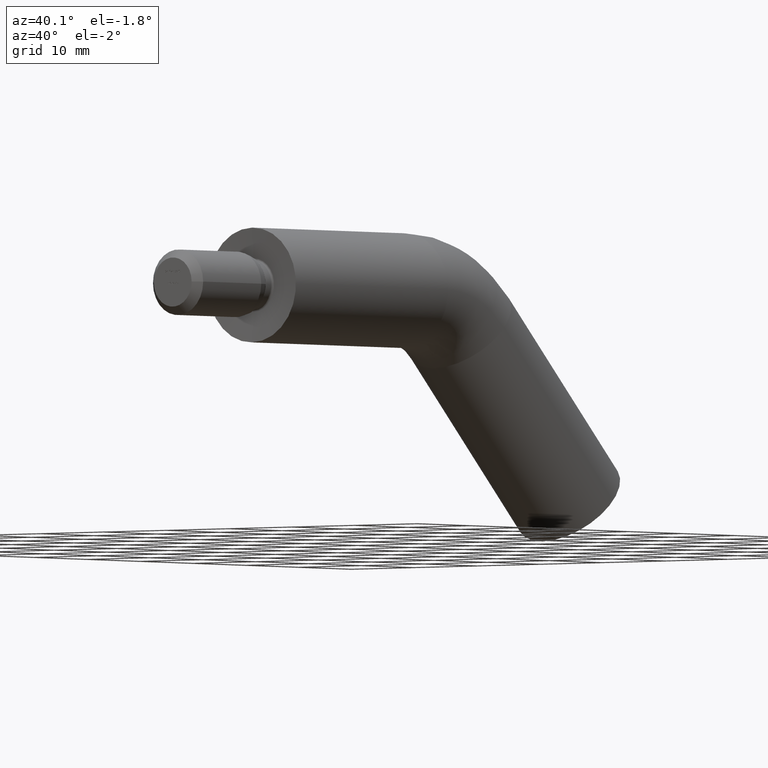
[diagram: clean part render]
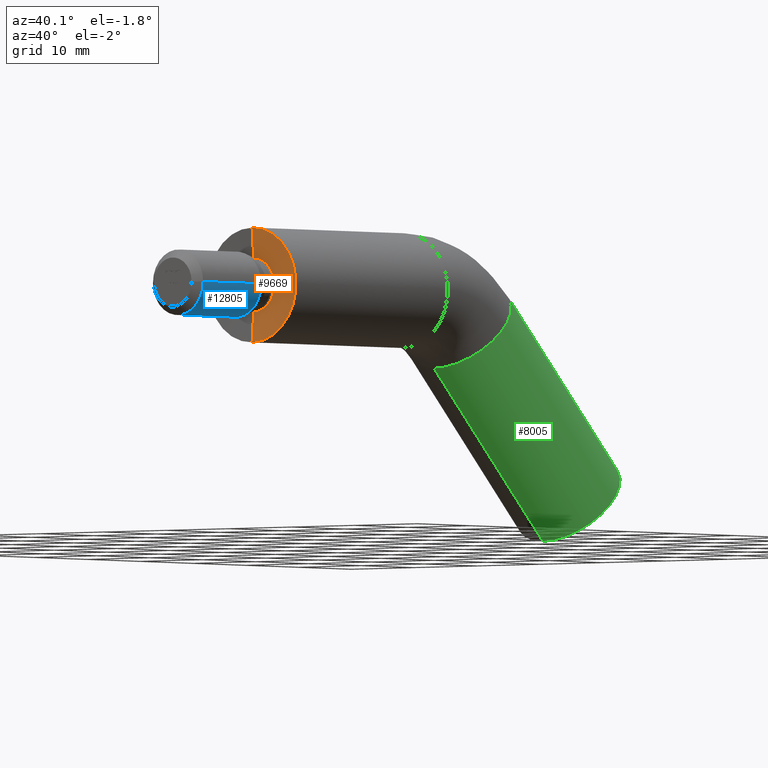
[diagram: same view with three faces highlighted in distinct colors, each labeled with its STEP entity id]
A machine part, auxiliary view with three faces highlighted in distinct colors.
Their STEP definitions:

[orange] entity #9669 — the highlighted conical surface has half-angle 85 deg.
#1080 = AXIS2_PLACEMENT_3D ( 'NONE', #8326, #7229, #8192 ) ;
#1416 = CARTESIAN_POINT ( 'NONE',  ( 0.0000000000000000000, 0.3261762033592852100, 0.0000000000000000000 ) ) ;
#1590 = AXIS2_PLACEMENT_3D ( 'NONE', #1416, #7637, #7560 ) ;
#1678 = AXIS2_PLACEMENT_3D ( 'NONE', #11620, #9657, #11754 ) ;
#1750 = VERTEX_POINT ( 'NONE', #13063 ) ;
#1849 = ORIENTED_EDGE ( 'NONE', *, *, #9052, .T. ) ;
#2219 = DIRECTION ( 'NONE',  ( 0.0000000000000000000, -0.08715574274765128200, -0.9961946980917461000 ) ) ;
#2286 = CIRCLE ( 'NONE', #1678, 7.000000000000000000 ) ;
#3094 = CARTESIAN_POINT ( 'NONE',  ( 0.0000000000000000000, 0.0000000000000000000, -7.000000000000000000 ) ) ;
#4009 = ORIENTED_EDGE ( 'NONE', *, *, #6234, .T. ) ;
#4931 = ORIENTED_EDGE ( 'NONE', *, *, #5767, .F. ) ;
#5767 = EDGE_CURVE ( 'NONE', #1750, #13227, #8176, .T. ) ;
#5977 = FACE_OUTER_BOUND ( 'NONE', #6456, .T. ) ;
#6234 = EDGE_CURVE ( 'NONE', #10663, #13227, #2286, .T. ) ;
#6302 = CONICAL_SURFACE ( 'NONE', #1080, 7.000000000000000000, 1.483529864195187100 ) ;
#6456 = EDGE_LOOP ( 'NONE', ( #4931, #1849, #11007, #4009 ) ) ;
#6797 = CARTESIAN_POINT ( 'NONE',  ( 0.0000000000000000000, 0.0000000000000000000, -7.000000000000000000 ) ) ;
#6909 = EDGE_CURVE ( 'NONE', #9186, #10663, #9742, .T. ) ;
#7229 = DIRECTION ( 'NONE',  ( -0.0000000000000000000, -1.000000000000000000, -0.0000000000000000000 ) ) ;
#7459 = CIRCLE ( 'NONE', #1590, 3.271788935686912800 ) ;
#7560 = DIRECTION ( 'NONE',  ( 0.0000000000000000000, 0.0000000000000000000, -1.000000000000000000 ) ) ;
#7637 = DIRECTION ( 'NONE',  ( 0.0000000000000000000, 1.000000000000000000, 0.0000000000000000000 ) ) ;
#8176 = LINE ( 'NONE', #11235, #8662 ) ;
#8192 = DIRECTION ( 'NONE',  ( 0.0000000000000000000, 0.0000000000000000000, -1.000000000000000000 ) ) ;
#8326 = CARTESIAN_POINT ( 'NONE',  ( 0.0000000000000000000, 0.0000000000000000000, 0.0000000000000000000 ) ) ;
#8662 = VECTOR ( 'NONE', #11094, 1000.000000000000000 ) ;
#9052 = EDGE_CURVE ( 'NONE', #1750, #9186, #7459, .T. ) ;
#9186 = VERTEX_POINT ( 'NONE', #13058 ) ;
#9657 = DIRECTION ( 'NONE',  ( -0.0000000000000000000, -1.000000000000000000, -0.0000000000000000000 ) ) ;
#9669 = ADVANCED_FACE ( 'NONE', ( #5977 ), #6302, .F. ) ;
#9742 = LINE ( 'NONE', #3094, #12006 ) ;
#10663 = VERTEX_POINT ( 'NONE', #6797 ) ;
#11007 = ORIENTED_EDGE ( 'NONE', *, *, #6909, .T. ) ;
#11094 = DIRECTION ( 'NONE',  ( 1.219986648345620700E-016, -0.08715574274765128200, 0.9961946980917461000 ) ) ;
#11235 = CARTESIAN_POINT ( 'NONE',  ( 8.572527594031473200E-016, 0.0000000000000000000, 7.000000000000000000 ) ) ;
#11453 = CARTESIAN_POINT ( 'NONE',  ( 8.572527594031473200E-016, 0.0000000000000000000, 7.000000000000000000 ) ) ;
#11620 = CARTESIAN_POINT ( 'NONE',  ( 0.0000000000000000000, 0.0000000000000000000, 0.0000000000000000000 ) ) ;
#11754 = DIRECTION ( 'NONE',  ( 0.0000000000000000000, 0.0000000000000000000, -1.000000000000000000 ) ) ;
#12006 = VECTOR ( 'NONE', #2219, 1000.000000000000000 ) ;
#13058 = CARTESIAN_POINT ( 'NONE',  ( 0.0000000000000000000, 0.3261762033592852100, -3.271788935686912800 ) ) ;
#13063 = CARTESIAN_POINT ( 'NONE',  ( 6.289656720803087700E-016, 0.3261762033592852100, 3.271788935686912800 ) ) ;
#13227 = VERTEX_POINT ( 'NONE', #11453 ) ;

[blue] entity #12805 — the highlighted cylindrical surface (edge-blend (fillet) strip) has radius 4 mm, axis along (-0, 1, -0).
#1 = EDGE_CURVE ( 'NONE', #4466, #9406, #8992, .T. ) ;
#57 = DIRECTION ( 'NONE',  ( -1.000000000000000000, -1.156482317317871700E-016, 0.0000000000000000000 ) ) ;
#782 = VECTOR ( 'NONE', #3477, 1000.000000000000000 ) ;
#1422 = CARTESIAN_POINT ( 'NONE',  ( -4.000000000000001800, -3.000000000000000000, 0.0000000000000000000 ) ) ;
#1990 = CYLINDRICAL_SURFACE ( 'NONE', #8130, 4.000000000000000900 ) ;
#2617 = CARTESIAN_POINT ( 'NONE',  ( -3.999999999999999100, -13.99999999999999300, 0.0000000000000000000 ) ) ;
#2970 = ORIENTED_EDGE ( 'NONE', *, *, #4318, .F. ) ;
#3477 = DIRECTION ( 'NONE',  ( -1.156482317317871500E-016, 1.000000000000000000, -0.0000000000000000000 ) ) ;
#4136 = EDGE_LOOP ( 'NONE', ( #5250, #5137, #12266, #2970 ) ) ;
#4240 = DIRECTION ( 'NONE',  ( -1.156482317317871500E-016, 1.000000000000000000, -0.0000000000000000000 ) ) ;
#4318 = EDGE_CURVE ( 'NONE', #7055, #9406, #8214, .T. ) ;
#4368 = CARTESIAN_POINT ( 'NONE',  ( 4.000000000000000900, 4.625929269271487900E-016, 4.898587196589413800E-016 ) ) ;
#4403 = DIRECTION ( 'NONE',  ( -1.000000000000000000, 0.0000000000000000000, 0.0000000000000000000 ) ) ;
#4447 = DIRECTION ( 'NONE',  ( -1.156482317317871500E-016, 1.000000000000000000, -0.0000000000000000000 ) ) ;
#4466 = VERTEX_POINT ( 'NONE', #2617 ) ;
#5137 = ORIENTED_EDGE ( 'NONE', *, *, #9301, .T. ) ;
#5250 = ORIENTED_EDGE ( 'NONE', *, *, #7761, .F. ) ;
#5378 = CARTESIAN_POINT ( 'NONE',  ( -4.000000000000000900, -4.625929269271487900E-016, 0.0000000000000000000 ) ) ;
#5882 = AXIS2_PLACEMENT_3D ( 'NONE', #12456, #7275, #6176 ) ;
#5981 = CIRCLE ( 'NONE', #12491, 4.000000000000000900 ) ;
#6176 = DIRECTION ( 'NONE',  ( -1.000000000000000000, -1.084202172485503900E-016, 0.0000000000000000000 ) ) ;
#6186 = LINE ( 'NONE', #4368, #782 ) ;
#6356 = CARTESIAN_POINT ( 'NONE',  ( 0.0000000000000000000, 0.0000000000000000000, 0.0000000000000000000 ) ) ;
#6401 = VECTOR ( 'NONE', #4447, 1000.000000000000000 ) ;
#7055 = VERTEX_POINT ( 'NONE', #11184 ) ;
#7275 = DIRECTION ( 'NONE',  ( -1.156482317317871500E-016, 1.000000000000000000, -0.0000000000000000000 ) ) ;
#7761 = EDGE_CURVE ( 'NONE', #10464, #7055, #6186, .T. ) ;
#8130 = AXIS2_PLACEMENT_3D ( 'NONE', #6356, #4240, #57 ) ;
#8214 = CIRCLE ( 'NONE', #5882, 4.000000000000001800 ) ;
#8992 = LINE ( 'NONE', #5378, #6401 ) ;
#9301 = EDGE_CURVE ( 'NONE', #10464, #4466, #5981, .T. ) ;
#9406 = VERTEX_POINT ( 'NONE', #1422 ) ;
#10464 = VERTEX_POINT ( 'NONE', #12499 ) ;
#10594 = FACE_OUTER_BOUND ( 'NONE', #4136, .T. ) ;
#11184 = CARTESIAN_POINT ( 'NONE',  ( 4.000000000000001800, -2.999999999999999100, 4.898587196589413800E-016 ) ) ;
#12266 = ORIENTED_EDGE ( 'NONE', *, *, #1, .T. ) ;
#12456 = CARTESIAN_POINT ( 'NONE',  ( 3.469446951953613700E-016, -2.999999999999999600, 0.0000000000000000000 ) ) ;
#12491 = AXIS2_PLACEMENT_3D ( 'NONE', #12713, #12760, #4403 ) ;
#12499 = CARTESIAN_POINT ( 'NONE',  ( 4.000000000000002700, -13.99999999999999300, 4.898587196589414800E-016 ) ) ;
#12713 = CARTESIAN_POINT ( 'NONE',  ( 1.619075244245019200E-015, -13.99999999999999300, 0.0000000000000000000 ) ) ;
#12760 = DIRECTION ( 'NONE',  ( -1.156482317317871700E-016, 1.000000000000000000, -0.0000000000000000000 ) ) ;
#12805 = ADVANCED_FACE ( 'NONE', ( #10594 ), #1990, .T. ) ;

[green] entity #8005 — the highlighted cylindrical surface (partial cylindrical patch) has radius 7 mm, axis along (0, 0.7071, -0.7071).
#179 = DIRECTION ( 'NONE',  ( 0.0000000000000000000, 0.7071067811865462400, -0.7071067811865489100 ) ) ;
#226 = CARTESIAN_POINT ( 'NONE',  ( 0.0000000000000000000, 60.00000000000000000, -24.99999999999999300 ) ) ;
#890 = CARTESIAN_POINT ( 'NONE',  ( 8.572527594031473200E-016, 55.05025253169416300, -29.94974746830581900 ) ) ;
#1469 = ORIENTED_EDGE ( 'NONE', *, *, #8963, .F. ) ;
#2213 = DIRECTION ( 'NONE',  ( 0.0000000000000000000, 0.7071067811865462400, -0.7071067811865489100 ) ) ;
#2546 = CARTESIAN_POINT ( 'NONE',  ( 0.0000000000000000000, 44.34314575050772300, 0.5563491861040212900 ) ) ;
#3225 = CARTESIAN_POINT ( 'NONE',  ( 0.0000000000000000000, 44.34314575050772300, 0.5563491861040205100 ) ) ;
#3743 = CIRCLE ( 'NONE', #12842, 7.000000000000001800 ) ;
#4184 = LINE ( 'NONE', #3225, #11487 ) ;
#4269 = CARTESIAN_POINT ( 'NONE',  ( 0.0000000000000000000, 39.39339828220188600, -4.393398282201803600 ) ) ;
#4690 = ORIENTED_EDGE ( 'NONE', *, *, #6212, .T. ) ;
#5180 = CYLINDRICAL_SURFACE ( 'NONE', #9283, 7.000000000000000900 ) ;
#5205 = CARTESIAN_POINT ( 'NONE',  ( 8.572527594031473200E-016, 34.44365081389604200, -9.343145750507629200 ) ) ;
#5575 = DIRECTION ( 'NONE',  ( 0.0000000000000000000, 0.7071067811865463500, -0.7071067811865487900 ) ) ;
#5716 = VECTOR ( 'NONE', #179, 999.9999999999998900 ) ;
#5782 = VERTEX_POINT ( 'NONE', #7048 ) ;
#6039 = AXIS2_PLACEMENT_3D ( 'NONE', #10752, #5575, #11858 ) ;
#6094 = ORIENTED_EDGE ( 'NONE', *, *, #12953, .T. ) ;
#6212 = EDGE_CURVE ( 'NONE', #7728, #9263, #11366, .T. ) ;
#6425 = CARTESIAN_POINT ( 'NONE',  ( 8.572527594031473200E-016, 34.44365081389604200, -9.343145750507627400 ) ) ;
#7048 = CARTESIAN_POINT ( 'NONE',  ( 0.0000000000000000000, 64.94974746830584400, -20.05025253169417400 ) ) ;
#7377 = EDGE_CURVE ( 'NONE', #5782, #9263, #3743, .T. ) ;
#7519 = DIRECTION ( 'NONE',  ( 0.0000000000000000000, 0.7071067811865462400, -0.7071067811865487900 ) ) ;
#7588 = DIRECTION ( 'NONE',  ( 0.0000000000000000000, 0.7071067811865463500, -0.7071067811865487900 ) ) ;
#7728 = VERTEX_POINT ( 'NONE', #5205 ) ;
#7786 = VERTEX_POINT ( 'NONE', #2546 ) ;
#8005 = ADVANCED_FACE ( 'NONE', ( #9569 ), #5180, .T. ) ;
#8922 = EDGE_LOOP ( 'NONE', ( #6094, #4690, #11638, #1469 ) ) ;
#8963 = EDGE_CURVE ( 'NONE', #7786, #5782, #4184, .T. ) ;
#9263 = VERTEX_POINT ( 'NONE', #890 ) ;
#9283 = AXIS2_PLACEMENT_3D ( 'NONE', #4269, #7519, #12530 ) ;
#9569 = FACE_OUTER_BOUND ( 'NONE', #8922, .T. ) ;
#9640 = CIRCLE ( 'NONE', #6039, 7.000000000000000900 ) ;
#10752 = CARTESIAN_POINT ( 'NONE',  ( 0.0000000000000000000, 39.39339828220188600, -4.393398282201803600 ) ) ;
#11366 = LINE ( 'NONE', #6425, #5716 ) ;
#11487 = VECTOR ( 'NONE', #2213, 999.9999999999998900 ) ;
#11638 = ORIENTED_EDGE ( 'NONE', *, *, #7377, .F. ) ;
#11858 = DIRECTION ( 'NONE',  ( 0.0000000000000000000, 0.7071067811865487900, 0.7071067811865462400 ) ) ;
#12530 = DIRECTION ( 'NONE',  ( 0.0000000000000000000, 0.7071067811865487900, 0.7071067811865461300 ) ) ;
#12607 = DIRECTION ( 'NONE',  ( 0.0000000000000000000, 0.7071067811865487900, 0.7071067811865463500 ) ) ;
#12842 = AXIS2_PLACEMENT_3D ( 'NONE', #226, #7588, #12607 ) ;
#12953 = EDGE_CURVE ( 'NONE', #7786, #7728, #9640, .T. ) ;